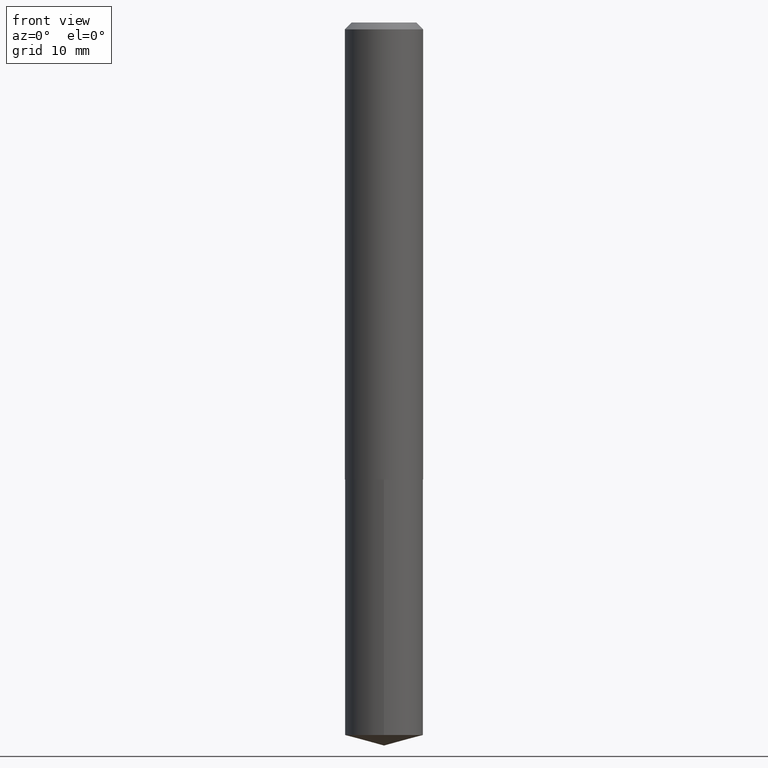
[diagram: clean part render]
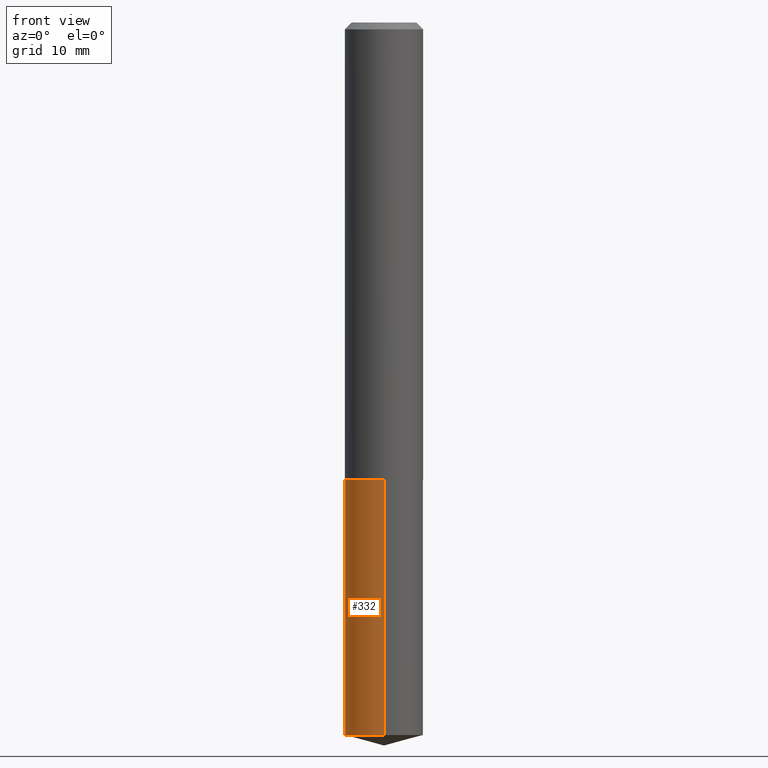
[diagram: same view with one face highlighted and labeled with its STEP entity id]
A machine part, front view. The second image highlights one B-rep face of the part: STEP entity #332.
In plain terms, the highlighted cylindrical surface (partial cylindrical patch) has radius 4.5504 mm, axis along (-0, 0, 1).
Its self-contained STEP definition (entity closure, byte-faithful):
#12 = DIRECTION ( 'NONE',  ( -6.982962677686265133E-15, -1.000000000000000000, 3.049788438363675772E-15 ) ) ;
#23 = DIRECTION ( 'NONE',  ( -2.445528270393014272E-29, 3.491396182712972122E-15, 1.000000000000000000 ) ) ;
#32 = AXIS2_PLACEMENT_3D ( 'NONE', #236, #163, #12 ) ;
#34 = EDGE_CURVE ( 'NONE', #326, #181, #72, .T. ) ;
#43 = CIRCLE ( 'NONE', #32, 0.1791500000000000314 ) ;
#55 = CARTESIAN_POINT ( 'NONE',  ( -1.250997763707443541E-15, -0.1791500000000073312, -2.090599999999999792 ) ) ;
#72 = LINE ( 'NONE', #94, #388 ) ;
#86 = CARTESIAN_POINT ( 'NONE',  ( 5.112497086210647566E-29, -7.299290886985481023E-15, -2.090600000000000236 ) ) ;
#94 = CARTESIAN_POINT ( 'NONE',  ( 1.272937311114270588E-15, 0.1791499999999927040, -2.090600000000001124 ) ) ;
#118 = DIRECTION ( 'NONE',  ( -2.445528270393014272E-29, 3.491396182712972122E-15, 1.000000000000000000 ) ) ;
#122 = ORIENTED_EDGE ( 'NONE', *, *, #34, .F. ) ;
#123 = DIRECTION ( 'NONE',  ( -2.445528270393014272E-29, 3.491396182712971728E-15, 1.000000000000000000 ) ) ;
#161 = AXIS2_PLACEMENT_3D ( 'NONE', #355, #118, #198 ) ;
#163 = DIRECTION ( 'NONE',  ( -2.445528270393014272E-29, 3.491396182712972122E-15, 1.000000000000000000 ) ) ;
#167 = VERTEX_POINT ( 'NONE', #187 ) ;
#181 = VERTEX_POINT ( 'NONE', #309 ) ;
#187 = CARTESIAN_POINT ( 'NONE',  ( -1.250997763707415339E-15, -0.1791500000000114667, -3.259096902175965038 ) ) ;
#197 = ORIENTED_EDGE ( 'NONE', *, *, #351, .F. ) ;
#198 = DIRECTION ( 'NONE',  ( -6.982962677686265133E-15, -1.000000000000000000, 3.049788438363675772E-15 ) ) ;
#205 = ORIENTED_EDGE ( 'NONE', *, *, #246, .T. ) ;
#217 = CARTESIAN_POINT ( 'NONE',  ( -1.250997763707443541E-15, -0.1791500000000073312, -2.090599999999999792 ) ) ;
#226 = CYLINDRICAL_SURFACE ( 'NONE', #228, 0.1791500000000000314 ) ;
#228 = AXIS2_PLACEMENT_3D ( 'NONE', #86, #23, #248 ) ;
#234 = EDGE_CURVE ( 'NONE', #167, #389, #278, .T. ) ;
#236 = CARTESIAN_POINT ( 'NONE',  ( 7.970089294348630770E-29, -1.137897651075457780E-14, -3.259096902175965482 ) ) ;
#246 = EDGE_CURVE ( 'NONE', #326, #167, #43, .T. ) ;
#248 = DIRECTION ( 'NONE',  ( -6.982962677686265133E-15, -1.000000000000000000, 3.049788438363675772E-15 ) ) ;
#253 = CIRCLE ( 'NONE', #161, 0.1791500000000000314 ) ;
#262 = VECTOR ( 'NONE', #306, 39.37007874015748143 ) ;
#278 = LINE ( 'NONE', #217, #262 ) ;
#306 = DIRECTION ( 'NONE',  ( -2.445528270393014272E-29, 3.491396182712971728E-15, 1.000000000000000000 ) ) ;
#309 = CARTESIAN_POINT ( 'NONE',  ( 1.272937311114299184E-15, 0.1791499999999927040, -2.090600000000001124 ) ) ;
#310 = ORIENTED_EDGE ( 'NONE', *, *, #234, .T. ) ;
#316 = CARTESIAN_POINT ( 'NONE',  ( 1.272937311114299381E-15, 0.1791499999999886794, -3.259096902175965926 ) ) ;
#326 = VERTEX_POINT ( 'NONE', #316 ) ;
#332 = ADVANCED_FACE ( 'NONE', ( #380 ), #226, .T. ) ;
#351 = EDGE_CURVE ( 'NONE', #181, #389, #253, .T. ) ;
#355 = CARTESIAN_POINT ( 'NONE',  ( 5.112497086210647566E-29, -7.299290886985481023E-15, -2.090600000000000236 ) ) ;
#379 = EDGE_LOOP ( 'NONE', ( #122, #205, #310, #197 ) ) ;
#380 = FACE_OUTER_BOUND ( 'NONE', #379, .T. ) ;
#388 = VECTOR ( 'NONE', #123, 39.37007874015748143 ) ;
#389 = VERTEX_POINT ( 'NONE', #55 ) ;